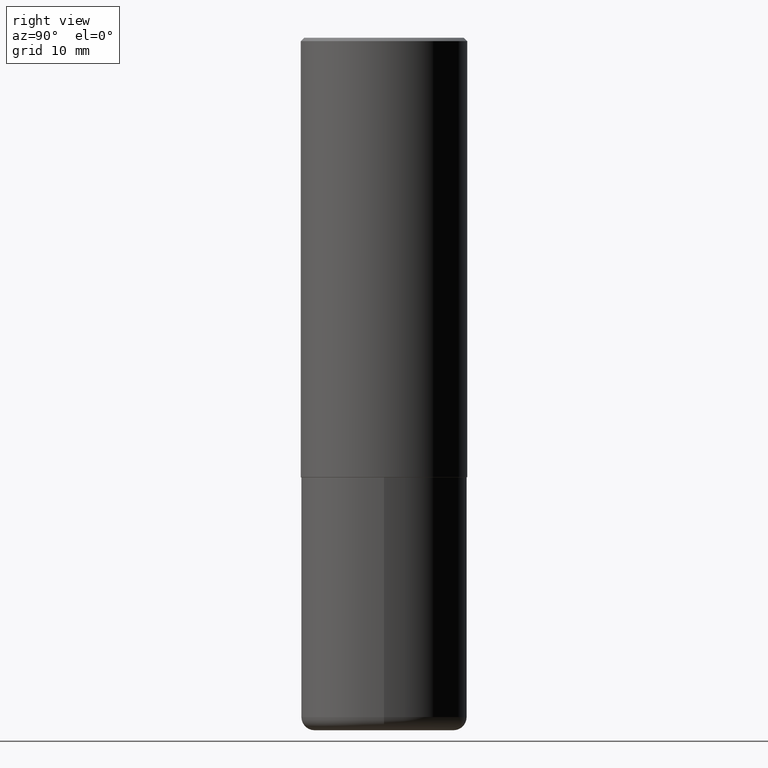
[diagram: clean part render]
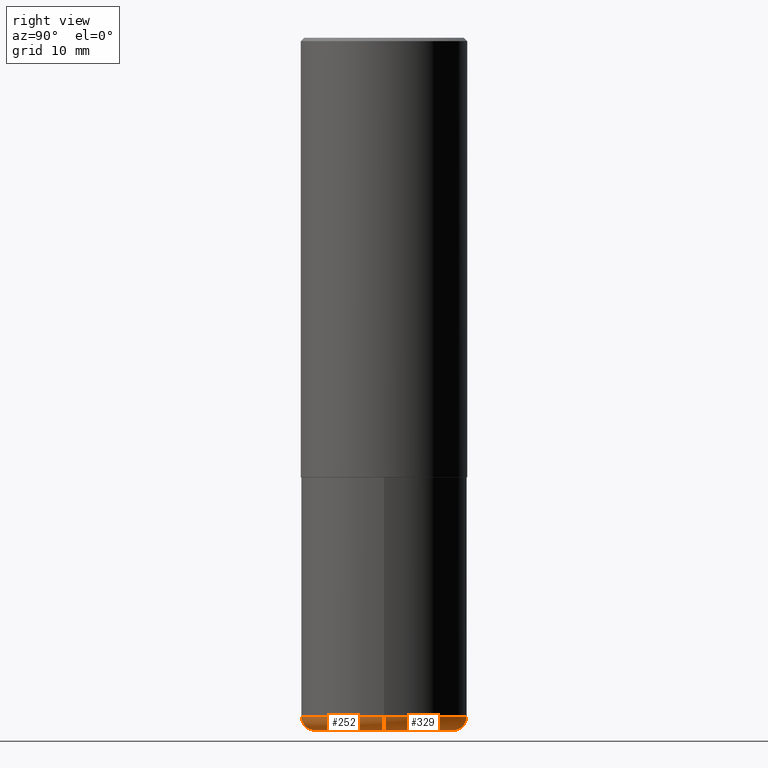
[diagram: same view with one multi-face feature highlighted, each face labeled with its STEP entity id]
A machine part, right view. The highlighted faces form ONE feature: a constant-radius fillet chain: 2 tangent blend faces with common blend radius 1.999 mm. The faces share edges in the B-rep.
Their STEP definitions:
[1] entity #252 (Torus):
#20 = CARTESIAN_POINT ( 'NONE',  ( 0.4134499999999999287, -1.690819667961569252E-14, -4.015800000000000480 ) ) ;
#26 = CIRCLE ( 'NONE', #299, 0.4134499999999999287 ) ;
#31 = CARTESIAN_POINT ( 'NONE',  ( 9.820513631878272860E-29, -1.402109076052630500E-14, -4.015800000000000480 ) ) ;
#35 = VERTEX_POINT ( 'NONE', #178 ) ;
#40 = DIRECTION ( 'NONE',  ( 1.000000000000000000, -6.982962677686266711E-15, 0.000000000000000000 ) ) ;
#43 = AXIS2_PLACEMENT_3D ( 'NONE', #308, #277, #247 ) ;
#44 = AXIS2_PLACEMENT_3D ( 'NONE', #354, #325, #390 ) ;
#65 = AXIS2_PLACEMENT_3D ( 'NONE', #20, #305, #374 ) ;
#84 = AXIS2_PLACEMENT_3D ( 'NONE', #31, #219, #225 ) ;
#96 = EDGE_CURVE ( 'NONE', #146, #205, #349, .T. ) ;
#100 = EDGE_CURVE ( 'NONE', #35, #131, #161, .T. ) ;
#127 = CARTESIAN_POINT ( 'NONE',  ( 0.4921500000000000874, -1.745775584234960235E-14, -4.015800000000000480 ) ) ;
#131 = VERTEX_POINT ( 'NONE', #127 ) ;
#144 = ORIENTED_EDGE ( 'NONE', *, *, #100, .T. ) ;
#146 = VERTEX_POINT ( 'NONE', #352 ) ;
#149 = TOROIDAL_SURFACE ( 'NONE', #84, 0.4134499999999999287, 0.07870000000000026974 ) ;
#161 = CIRCLE ( 'NONE', #65, 0.07870000000000031137 ) ;
#172 = CIRCLE ( 'NONE', #44, 0.4921500000000000319 ) ;
#178 = CARTESIAN_POINT ( 'NONE',  ( 0.4134499999999999287, -1.718297626098264901E-14, -4.094500000000000917 ) ) ;
#205 = VERTEX_POINT ( 'NONE', #220 ) ;
#219 = DIRECTION ( 'NONE',  ( -2.445468806185136597E-29, 3.491481338843145583E-15, 1.000000000000000000 ) ) ;
#220 = CARTESIAN_POINT ( 'NONE',  ( -0.4921500000000000874, -1.052415468648297131E-14, -4.015800000000000480 ) ) ;
#225 = DIRECTION ( 'NONE',  ( 1.000000000000000000, -6.982962677686266711E-15, 4.883557194083112901E-29 ) ) ;
#234 = CARTESIAN_POINT ( 'NONE',  ( 1.001297202692504327E-28, -1.429587034189326465E-14, -4.094500000000000917 ) ) ;
#236 = DIRECTION ( 'NONE',  ( -2.445468806185136597E-29, 3.491481338843145583E-15, 1.000000000000000000 ) ) ;
#247 = DIRECTION ( 'NONE',  ( -1.000000000000000000, 7.105427357600989237E-15, 0.000000000000000000 ) ) ;
#252 = ADVANCED_FACE ( 'NONE', ( #416 ), #149, .T. ) ;
#272 = EDGE_LOOP ( 'NONE', ( #397, #400, #144, #360 ) ) ;
#277 = DIRECTION ( 'NONE',  ( 7.105427357601001859E-15, 1.000000000000000000, -3.491481338843145583E-15 ) ) ;
#299 = AXIS2_PLACEMENT_3D ( 'NONE', #234, #236, #40 ) ;
#305 = DIRECTION ( 'NONE',  ( -6.982962677686266711E-15, -1.000000000000000000, 3.491481338843145583E-15 ) ) ;
#308 = CARTESIAN_POINT ( 'NONE',  ( -0.4134499999999999287, -1.108335181952617168E-14, -4.015800000000000480 ) ) ;
#325 = DIRECTION ( 'NONE',  ( -2.445468806185136597E-29, 3.491481338843145583E-15, 1.000000000000000000 ) ) ;
#340 = EDGE_CURVE ( 'NONE', #146, #35, #26, .T. ) ;
#349 = CIRCLE ( 'NONE', #43, 0.07870000000000031137 ) ;
#352 = CARTESIAN_POINT ( 'NONE',  ( -0.4134499999999999287, -1.094114304368804896E-14, -4.094500000000000917 ) ) ;
#354 = CARTESIAN_POINT ( 'NONE',  ( 9.820513631878272860E-29, -1.402109076052630500E-14, -4.015800000000000480 ) ) ;
#360 = ORIENTED_EDGE ( 'NONE', *, *, #375, .F. ) ;
#374 = DIRECTION ( 'NONE',  ( 1.000000000000000000, -6.982962677686267499E-15, 0.000000000000000000 ) ) ;
#375 = EDGE_CURVE ( 'NONE', #205, #131, #172, .T. ) ;
#390 = DIRECTION ( 'NONE',  ( 1.000000000000000000, -6.982962677686265133E-15, 0.000000000000000000 ) ) ;
#397 = ORIENTED_EDGE ( 'NONE', *, *, #96, .F. ) ;
#400 = ORIENTED_EDGE ( 'NONE', *, *, #340, .T. ) ;
#416 = FACE_OUTER_BOUND ( 'NONE', #272, .T. ) ;
[2] entity #329 (Torus):
#6 = DIRECTION ( 'NONE',  ( 1.000000000000000000, -6.982962677686266711E-15, 4.883557194083112901E-29 ) ) ;
#20 = CARTESIAN_POINT ( 'NONE',  ( 0.4134499999999999287, -1.690819667961569252E-14, -4.015800000000000480 ) ) ;
#35 = VERTEX_POINT ( 'NONE', #178 ) ;
#36 = AXIS2_PLACEMENT_3D ( 'NONE', #242, #152, #405 ) ;
#43 = AXIS2_PLACEMENT_3D ( 'NONE', #308, #277, #247 ) ;
#65 = AXIS2_PLACEMENT_3D ( 'NONE', #20, #305, #374 ) ;
#70 = AXIS2_PLACEMENT_3D ( 'NONE', #257, #145, #355 ) ;
#79 = CARTESIAN_POINT ( 'NONE',  ( 9.820513631878272860E-29, -1.402109076052630500E-14, -4.015800000000000480 ) ) ;
#96 = EDGE_CURVE ( 'NONE', #146, #205, #349, .T. ) ;
#100 = EDGE_CURVE ( 'NONE', #35, #131, #161, .T. ) ;
#110 = EDGE_CURVE ( 'NONE', #35, #146, #224, .T. ) ;
#127 = CARTESIAN_POINT ( 'NONE',  ( 0.4921500000000000874, -1.745775584234960235E-14, -4.015800000000000480 ) ) ;
#131 = VERTEX_POINT ( 'NONE', #127 ) ;
#143 = FACE_OUTER_BOUND ( 'NONE', #296, .T. ) ;
#145 = DIRECTION ( 'NONE',  ( -2.445468806185136597E-29, 3.491481338843145583E-15, 1.000000000000000000 ) ) ;
#146 = VERTEX_POINT ( 'NONE', #352 ) ;
#152 = DIRECTION ( 'NONE',  ( -2.445468806185136597E-29, 3.491481338843145583E-15, 1.000000000000000000 ) ) ;
#161 = CIRCLE ( 'NONE', #65, 0.07870000000000031137 ) ;
#166 = ORIENTED_EDGE ( 'NONE', *, *, #96, .T. ) ;
#170 = ORIENTED_EDGE ( 'NONE', *, *, #110, .T. ) ;
#178 = CARTESIAN_POINT ( 'NONE',  ( 0.4134499999999999287, -1.718297626098264901E-14, -4.094500000000000917 ) ) ;
#201 = ORIENTED_EDGE ( 'NONE', *, *, #100, .F. ) ;
#205 = VERTEX_POINT ( 'NONE', #220 ) ;
#220 = CARTESIAN_POINT ( 'NONE',  ( -0.4921500000000000874, -1.052415468648297131E-14, -4.015800000000000480 ) ) ;
#224 = CIRCLE ( 'NONE', #36, 0.4134499999999999287 ) ;
#242 = CARTESIAN_POINT ( 'NONE',  ( 1.001297202692504327E-28, -1.429587034189326465E-14, -4.094500000000000917 ) ) ;
#247 = DIRECTION ( 'NONE',  ( -1.000000000000000000, 7.105427357600989237E-15, 0.000000000000000000 ) ) ;
#248 = CIRCLE ( 'NONE', #70, 0.4921500000000000319 ) ;
#257 = CARTESIAN_POINT ( 'NONE',  ( 9.820513631878272860E-29, -1.402109076052630500E-14, -4.015800000000000480 ) ) ;
#277 = DIRECTION ( 'NONE',  ( 7.105427357601001859E-15, 1.000000000000000000, -3.491481338843145583E-15 ) ) ;
#282 = AXIS2_PLACEMENT_3D ( 'NONE', #79, #295, #6 ) ;
#286 = ORIENTED_EDGE ( 'NONE', *, *, #318, .F. ) ;
#295 = DIRECTION ( 'NONE',  ( -2.445468806185136597E-29, 3.491481338843145583E-15, 1.000000000000000000 ) ) ;
#296 = EDGE_LOOP ( 'NONE', ( #170, #166, #286, #201 ) ) ;
#305 = DIRECTION ( 'NONE',  ( -6.982962677686266711E-15, -1.000000000000000000, 3.491481338843145583E-15 ) ) ;
#308 = CARTESIAN_POINT ( 'NONE',  ( -0.4134499999999999287, -1.108335181952617168E-14, -4.015800000000000480 ) ) ;
#318 = EDGE_CURVE ( 'NONE', #131, #205, #248, .T. ) ;
#329 = ADVANCED_FACE ( 'NONE', ( #143 ), #386, .T. ) ;
#349 = CIRCLE ( 'NONE', #43, 0.07870000000000031137 ) ;
#352 = CARTESIAN_POINT ( 'NONE',  ( -0.4134499999999999287, -1.094114304368804896E-14, -4.094500000000000917 ) ) ;
#355 = DIRECTION ( 'NONE',  ( 1.000000000000000000, -6.982962677686265133E-15, 0.000000000000000000 ) ) ;
#374 = DIRECTION ( 'NONE',  ( 1.000000000000000000, -6.982962677686267499E-15, 0.000000000000000000 ) ) ;
#386 = TOROIDAL_SURFACE ( 'NONE', #282, 0.4134499999999999287, 0.07870000000000026974 ) ;
#405 = DIRECTION ( 'NONE',  ( 1.000000000000000000, -6.982962677686266711E-15, 0.000000000000000000 ) ) ;